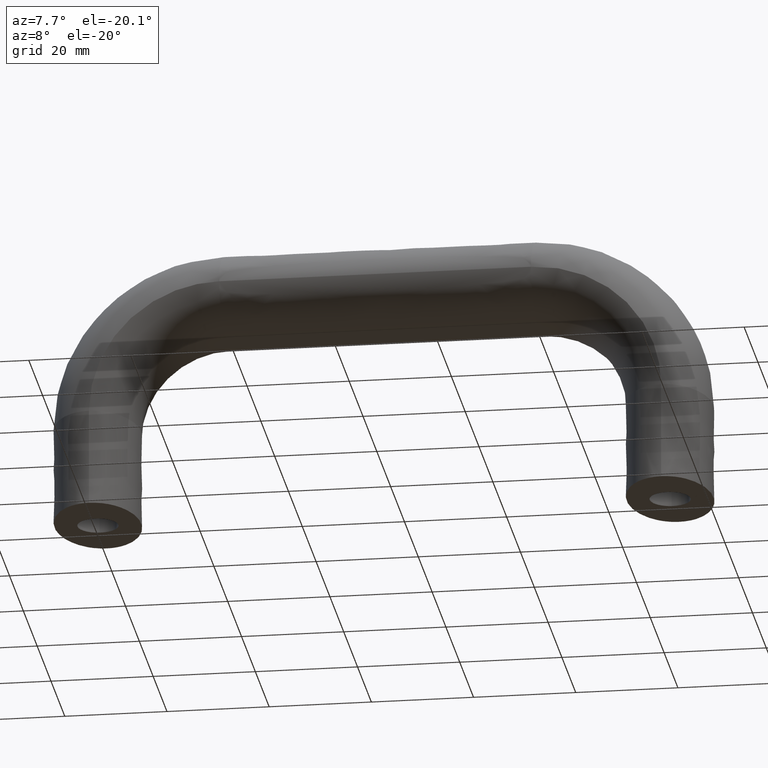
[diagram: clean part render]
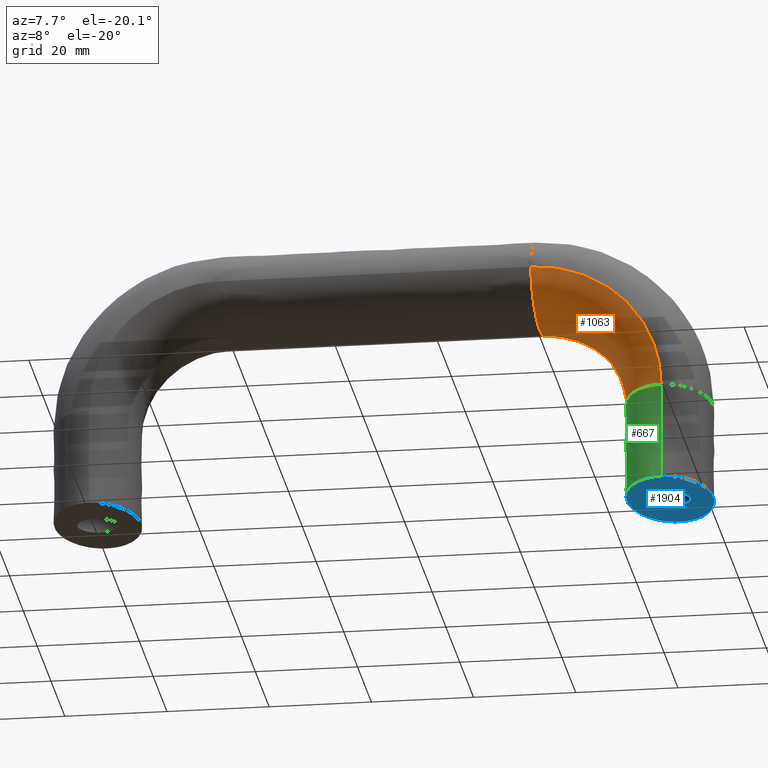
[diagram: same view with three faces highlighted in distinct colors, each labeled with its STEP entity id]
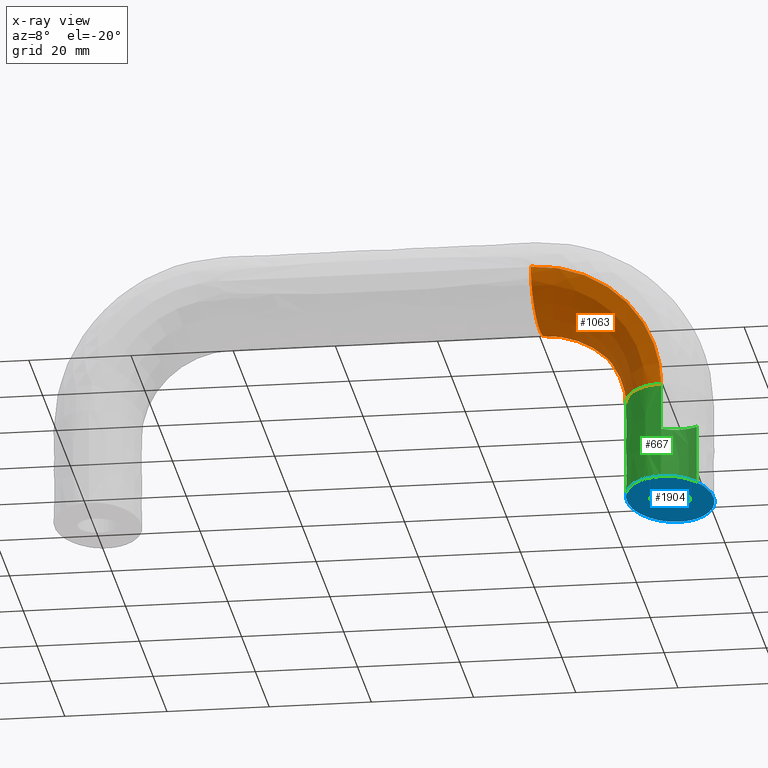
[diagram: x-ray of the same camera — body ghosted, the three highlighted faces saturated]
A machine part, auxiliary view with three faces highlighted in distinct colors.
The next image is the same camera in x-ray (body ghosted, the three faces saturated) — at least one of them is partly hidden behind the body in this view.
Their STEP definitions:

[orange] entity #1063 — the highlighted face is a freeform B-spline surface patch.
#467=CARTESIAN_POINT('',(112.0,-13.0,19.000008000000001));
#468=VERTEX_POINT('',#467);
#639=CARTESIAN_POINT('',(108.380935499016500,11.762637318019101,19.000008000000001));
#640=VERTEX_POINT('',#639);
#641=CARTESIAN_POINT('',(112.0,-13.0,19.000008000000001));
#642=CARTESIAN_POINT('',(110.887352601853610,-13.0,19.000008000000001));
#643=CARTESIAN_POINT('',(109.775142982945990,-12.661644796688099,19.000008000000001));
#644=CARTESIAN_POINT('',(107.719238666847200,-11.359223048605340,19.000008000000001));
#645=CARTESIAN_POINT('',(106.776352880213200,-10.395668951176340,19.000008000000001));
#646=CARTESIAN_POINT('',(104.416071319316600,-6.785826563922671,19.000008000000001));
#647=CARTESIAN_POINT('',(103.500000000000000,-3.403392041388941,19.000008000000001));
#648=CARTESIAN_POINT('',(103.500000000000000,3.403392041388945,19.000008000000001));
#649=CARTESIAN_POINT('',(104.416071319316600,6.785826563922680,19.000008000000001));
#650=CARTESIAN_POINT('',(106.681944169666100,10.251279158574910,19.000008000000001));
#651=CARTESIAN_POINT('',(107.495200276930800,11.124524438030560,19.000008000000001));
#652=CARTESIAN_POINT('',(108.380935499016500,11.762637318019101,19.000008000000001));
#653=B_SPLINE_CURVE_WITH_KNOTS('',3,(#641,#642,#643,#644,#645,#646,#647,#648,#649,#650,#651,#652),.UNSPECIFIED.,.F.,.U.,(4,2,2,2,2,4),(0.0,0.062500000000000,0.125000000000000,0.250000000000000,0.375000000000000,0.430000202721214),.UNSPECIFIED.);
#654=EDGE_CURVE('',#468,#640,#653,.T.);
#850=CARTESIAN_POINT('',(86.500000000000000,11.762637318019101,40.880943499016666));
#851=VERTEX_POINT('',#850);
#852=CARTESIAN_POINT('',(86.500000000000000,11.762637318019101,40.880943499016666));
#853=CARTESIAN_POINT('',(89.364675406398391,11.762637318019101,40.880916901839278));
#854=CARTESIAN_POINT('',(92.227287524936571,11.762637318019101,40.311440118332612));
#855=CARTESIAN_POINT('',(97.519652472830785,11.762637318019101,38.119269798671333));
#856=CARTESIAN_POINT('',(99.946855192562126,11.762637318019101,36.497464490749600));
#857=CARTESIAN_POINT('',(103.997456490749300,11.762637318019101,32.446863192562347));
#858=CARTESIAN_POINT('',(105.619261798682400,11.762637318019101,30.019660472813172));
#859=CARTESIAN_POINT('',(107.811432118321410,11.762637318019101,24.727295524954311));
#860=CARTESIAN_POINT('',(108.380908901974100,11.762637318019101,21.864683406385218));
#861=CARTESIAN_POINT('',(108.380935499016500,11.762637318019101,19.000008000000001));
#862=B_SPLINE_CURVE_WITH_KNOTS('',3,(#852,#853,#854,#855,#856,#857,#858,#859,#860,#861),.UNSPECIFIED.,.F.,.U.,(4,2,2,2,4),(0.670285818474701,0.726194430140404,0.782103041806107,0.838011653471810,0.893920265137512),.UNSPECIFIED.);
#863=EDGE_CURVE('',#851,#640,#862,.T.);
#887=CARTESIAN_POINT('',(86.500000000000000,-13.0,44.500008000000001));
#888=VERTEX_POINT('',#887);
#904=CARTESIAN_POINT('',(86.500000000000000,-13.0,44.500008000000001));
#905=CARTESIAN_POINT('',(89.838487934541106,-13.0,44.499975254139699));
#906=CARTESIAN_POINT('',(93.174571173048392,-13.0,43.836311204554733));
#907=CARTESIAN_POINT('',(99.342283877571163,-13.0,41.281560953520952));
#908=CARTESIAN_POINT('',(102.170941452661910,-13.0,39.391512387857723));
#909=CARTESIAN_POINT('',(106.891504387851700,-13.0,34.670949452656401));
#910=CARTESIAN_POINT('',(108.781552953532400,-13.0,31.842291877550970));
#911=CARTESIAN_POINT('',(111.336303204543000,-13.0,25.674579173068778));
#912=CARTESIAN_POINT('',(111.999967254278600,-13.0,22.338495934526119));
#913=CARTESIAN_POINT('',(112.0,-13.0,19.000008000000001));
#914=B_SPLINE_CURVE_WITH_KNOTS('',3,(#904,#905,#906,#907,#908,#909,#910,#911,#912,#913),.UNSPECIFIED.,.F.,.U.,(4,2,2,2,4),(0.670285818474701,0.726194430140404,0.782103041806107,0.838011653471810,0.893920265137512),.UNSPECIFIED.);
#915=EDGE_CURVE('',#888,#468,#914,.T.);
#922=CARTESIAN_POINT('',(86.500000000000000,-13.0,44.500008000000001));
#923=CARTESIAN_POINT('',(86.500000000000000,-13.0,43.387360601853601));
#924=CARTESIAN_POINT('',(86.500000000000000,-12.661644796688099,42.275150982946101));
#925=CARTESIAN_POINT('',(86.500000000000000,-11.359223048605340,40.219246666847347));
#926=CARTESIAN_POINT('',(86.500000000000000,-10.395668951176340,39.276360880213247));
#927=CARTESIAN_POINT('',(86.500000000000000,-6.785826563922671,36.916079319316601));
#928=CARTESIAN_POINT('',(86.500000000000000,-3.403392041388941,36.000008000000001));
#929=CARTESIAN_POINT('',(86.500000000000000,3.403392041388945,36.000008000000001));
#930=CARTESIAN_POINT('',(86.500000000000000,6.785826563922680,36.916079319316601));
#931=CARTESIAN_POINT('',(86.500000000000000,10.251275255686201,39.181949617777391));
#932=CARTESIAN_POINT('',(86.500000000000000,11.124518000766541,39.995202281890393));
#933=CARTESIAN_POINT('',(86.500000000000000,11.762630262096790,40.880933705014527));
#934=CARTESIAN_POINT('',(89.838487934541106,-13.0,44.499975254139699));
#935=CARTESIAN_POINT('',(89.692818918978091,-13.0,43.387329997841697));
#936=CARTESIAN_POINT('',(89.547207217894211,-12.661644796688099,42.275122471080941));
#937=CARTESIAN_POINT('',(89.278045973724304,-11.359223048605340,40.219221926647350));
#938=CARTESIAN_POINT('',(89.154602334074198,-10.395668951176340,39.276337824536448));
#939=CARTESIAN_POINT('',(88.845591687498199,-6.785826563922671,36.916060340258447));
#940=CARTESIAN_POINT('',(88.725658627156307,-3.403392041388941,35.999990543850551));
#941=CARTESIAN_POINT('',(88.725658627156307,3.403392041388945,35.999990543850551));
#942=CARTESIAN_POINT('',(88.845591687498199,6.785826563922680,36.916060340258447));
#943=CARTESIAN_POINT('',(89.142241908227859,10.251275255686201,39.181926725165333));
#944=CARTESIAN_POINT('',(89.248713837519603,11.124518000766541,39.995177941278421));
#945=CARTESIAN_POINT('',(89.364674765271857,11.762630262096790,40.880907748963693));
#946=CARTESIAN_POINT('',(93.174571173048392,-13.0,43.836311204554733));
#947=CARTESIAN_POINT('',(92.883338065225786,-13.0,42.752623042198749));
#948=CARTESIAN_POINT('',(92.592219545210099,-12.661644796688099,41.669361264862253));
#949=CARTESIAN_POINT('',(92.054090930186192,-11.359223048605340,39.666966639205853));
#950=CARTESIAN_POINT('',(91.807292565843895,-10.395668951176340,38.748621647665601));
#951=CARTESIAN_POINT('',(91.189493849488386,-6.785826563922671,36.449771902792691));
#952=CARTESIAN_POINT('',(90.949714115373297,-3.403392041388941,35.557543469699297));
#953=CARTESIAN_POINT('',(90.949714115373297,3.403392041388945,35.557543469699297));
#954=CARTESIAN_POINT('',(91.189493849488386,6.785826563922680,36.449771902781102));
#955=CARTESIAN_POINT('',(91.782580617167397,10.251275255686201,38.656667657881357));
#956=CARTESIAN_POINT('',(91.995447785346940,11.124518000766541,39.448753530332503));
#957=CARTESIAN_POINT('',(92.227286115701034,11.762630262096790,40.311431733566003));
#958=CARTESIAN_POINT('',(99.342283877571163,-13.0,41.281560953520952));
#959=CARTESIAN_POINT('',(98.781933534724303,-13.0,40.309344799778152));
#960=CARTESIAN_POINT('',(98.221803665793999,-12.661644796688099,39.337511171572999));
#961=CARTESIAN_POINT('',(97.186411240220210,-11.359223048605340,37.541089960338851));
#962=CARTESIAN_POINT('',(96.711556066247610,-10.395668951176340,36.717209192344953));
#963=CARTESIAN_POINT('',(95.522873484459197,-6.785826563922671,34.654827287065501));
#964=CARTESIAN_POINT('',(95.061522585039697,-3.403392041388941,33.854376635684503));
#965=CARTESIAN_POINT('',(95.061522585039697,3.403392041388945,33.854376635684503));
#966=CARTESIAN_POINT('',(95.522873484459197,6.785826563922680,34.654827287077097));
#967=CARTESIAN_POINT('',(96.664008762998336,10.251275255686201,36.634713916123147));
#968=CARTESIAN_POINT('',(97.073578236584538,11.124518000766541,37.345323025940573));
#969=CARTESIAN_POINT('',(97.519649388539960,11.762630262096790,38.119263088960032));
#970=CARTESIAN_POINT('',(102.170941452661910,-13.0,39.391512387857723));
#971=CARTESIAN_POINT('',(101.487167639574200,-13.0,38.501765160353500));
#972=CARTESIAN_POINT('',(100.803662862282590,-12.661644796688099,37.612368010384252));
#973=CARTESIAN_POINT('',(99.540213600717294,-11.359223048605340,35.968329505169848));
#974=CARTESIAN_POINT('',(98.960766229776397,-10.395668951176340,35.214335008883900));
#975=CARTESIAN_POINT('',(97.510262929675804,-6.785826563922671,33.326896114545413));
#976=CARTESIAN_POINT('',(96.947294301766902,-3.403392041388941,32.594344258564099));
#977=CARTESIAN_POINT('',(96.947294301766902,3.403392041388945,32.594344258564099));
#978=CARTESIAN_POINT('',(97.510262929675804,6.785826563922680,33.326896114545413));
#979=CARTESIAN_POINT('',(98.902746097772379,10.251275255686201,35.138837453110362));
#980=CARTESIAN_POINT('',(99.402527857992553,11.124518000766541,35.789168640114909));
#981=CARTESIAN_POINT('',(99.946851202094450,11.762630262096790,36.497458687215129));
#982=CARTESIAN_POINT('',(106.891504387851700,-13.0,34.670949452656401));
#983=CARTESIAN_POINT('',(106.001757160341800,-13.0,33.987175639562857));
#984=CARTESIAN_POINT('',(105.112360010372400,-12.661644796688099,33.303670862271296));
#985=CARTESIAN_POINT('',(103.468321505169600,-11.359223048605340,32.040221600717452));
#986=CARTESIAN_POINT('',(102.714327008883800,-10.395668951176340,31.460774229776550));
#987=CARTESIAN_POINT('',(100.826888114545200,-6.785826563922671,30.010270929675901));
#988=CARTESIAN_POINT('',(100.094336258575590,-3.403392041388941,29.447302301778649));
#989=CARTESIAN_POINT('',(100.094336258575590,3.403392041388945,29.447302301778649));
#990=CARTESIAN_POINT('',(100.826888114545200,6.785826563922680,30.010270929675951));
#991=CARTESIAN_POINT('',(102.638829453110300,10.251275255686201,31.402754097772529));
#992=CARTESIAN_POINT('',(103.289160640114700,11.124518000766541,31.902535857992699));
#993=CARTESIAN_POINT('',(103.997450687214890,11.762630262096790,32.446859202094693));
#994=CARTESIAN_POINT('',(108.781552953532400,-13.0,31.842291877550970));
#995=CARTESIAN_POINT('',(107.809336799789610,-13.0,31.281941534701200));
#996=CARTESIAN_POINT('',(106.837503171573000,-12.661644796688099,30.721811665782550));
#997=CARTESIAN_POINT('',(105.041081960338800,-11.359223048605340,29.686419240202898));
#998=CARTESIAN_POINT('',(104.217201192356400,-10.395668951176340,29.211564066236150));
#999=CARTESIAN_POINT('',(102.154819287077000,-6.785826563922671,28.022881484430300));
#1000=CARTESIAN_POINT('',(101.354368635696010,-3.403392041388941,27.561530585028201));
#1001=CARTESIAN_POINT('',(101.354368635696010,3.403392041388945,27.561530585028201));
#1002=CARTESIAN_POINT('',(102.154819287100200,6.785826563922680,28.022881484436098));
#1003=CARTESIAN_POINT('',(104.134705916124100,10.251275255686201,29.164016762964149));
#1004=CARTESIAN_POINT('',(104.845315025949600,11.124518000766541,29.573586236558871));
#1005=CARTESIAN_POINT('',(105.619255088971100,11.762630262096790,30.019657388522319));
#1006=CARTESIAN_POINT('',(111.336303204543000,-13.0,25.674579173068778));
#1007=CARTESIAN_POINT('',(110.252615042187000,-13.0,25.383346065249050));
#1008=CARTESIAN_POINT('',(109.169353264862200,-12.661644796688099,25.092227545221750));
#1009=CARTESIAN_POINT('',(107.166958639205800,-11.359223048605340,24.554098930203601));
#1010=CARTESIAN_POINT('',(106.248613647654000,-10.395668951176340,24.307300565855549));
#1011=CARTESIAN_POINT('',(103.949763902781000,-6.785826563922671,23.689501849517448));
#1012=CARTESIAN_POINT('',(103.057535469687590,-3.403392041388941,23.449722115385001));
#1013=CARTESIAN_POINT('',(103.057535469687590,3.403392041388945,23.449722115385001));
#1014=CARTESIAN_POINT('',(103.949763902757990,6.785826563922680,23.689501849511650));
#1015=CARTESIAN_POINT('',(106.156659657880400,10.251275255686201,24.282588617201800));
#1016=CARTESIAN_POINT('',(106.948745530323390,11.124518000766541,24.495455785372730));
#1017=CARTESIAN_POINT('',(107.811423733554800,11.762630262096790,24.727294115718781));
#1018=CARTESIAN_POINT('',(111.999967254278600,-13.0,22.338495934526119));
#1019=CARTESIAN_POINT('',(110.887321997977590,-13.0,22.192826918960900));
#1020=CARTESIAN_POINT('',(109.775114471213600,-12.661644796688099,22.047215217885650));
#1021=CARTESIAN_POINT('',(107.719213926773610,-11.359223048605340,21.778053973711451));
#1022=CARTESIAN_POINT('',(106.776329824639010,-10.395668951176340,21.654610334065701));
#1023=CARTESIAN_POINT('',(104.416052340392200,-6.785826563922671,21.345599687476600));
#1024=CARTESIAN_POINT('',(103.499982543971000,-3.403392041388941,21.225666627147849));
#1025=CARTESIAN_POINT('',(103.499982543971000,3.403392041388945,21.225666627147849));
#1026=CARTESIAN_POINT('',(104.416052340373000,6.785826563922680,21.345599687480949));
#1027=CARTESIAN_POINT('',(106.681918725288100,10.251275255686201,21.642249908202309));
#1028=CARTESIAN_POINT('',(107.495169941412100,11.124518000766541,21.748721837500391));
#1029=CARTESIAN_POINT('',(108.380899749098500,11.762630262096790,21.864682765258660));
#1030=CARTESIAN_POINT('',(112.0,-13.0,19.000008000000001));
#1031=CARTESIAN_POINT('',(110.887352601853610,-13.0,19.000008000000001));
#1032=CARTESIAN_POINT('',(109.775142982945990,-12.661644796688099,19.000008000000001));
#1033=CARTESIAN_POINT('',(107.719238666847200,-11.359223048605340,19.000008000000001));
#1034=CARTESIAN_POINT('',(106.776352880213200,-10.395668951176340,19.000008000000001));
#1035=CARTESIAN_POINT('',(104.416071319316600,-6.785826563922671,19.000008000000001));
#1036=CARTESIAN_POINT('',(103.500000000000000,-3.403392041388941,19.000008000000001));
#1037=CARTESIAN_POINT('',(103.500000000000000,3.403392041388945,19.000008000000001));
#1038=CARTESIAN_POINT('',(104.416071319316600,6.785826563922680,19.000008000000001));
#1039=CARTESIAN_POINT('',(106.681941617777300,10.251275255686201,19.000008000000001));
#1040=CARTESIAN_POINT('',(107.495194281890310,11.124518000766541,19.000008000000001));
#1041=CARTESIAN_POINT('',(108.380925705014410,11.762630262096790,19.000008000000001));
#1042=B_SPLINE_SURFACE_WITH_KNOTS('',3,3,((#922,#934,#946,#958,#970,#982,#994,#1006,#1018,#1030),(#923,#935,#947,#959,#971,#983,#995,#1007,#1019,#1031),(#924,#936,#948,#960,#972,#984,#996,#1008,#1020,#1032),(#925,#937,#949,#961,#973,#985,#997,#1009,#1021,#1033),(#926,#938,#950,#962,#974,#986,#998,#1010,#1022,#1034),(#927,#939,#951,#963,#975,#987,#999,#1011,#1023,#1035),(#928,#940,#952,#964,#976,#988,#1000,#1012,#1024,#1036),(#929,#941,#953,#965,#977,#989,#1001,#1013,#1025,#1037),(#930,#942,#954,#966,#978,#990,#1002,#1014,#1026,#1038),(#931,#943,#955,#967,#979,#991,#1003,#1015,#1027,#1039),(#932,#944,#956,#968,#980,#992,#1004,#1016,#1028,#1040),(#933,#945,#957,#969,#981,#993,#1005,#1017,#1029,#1041)),.UNSPECIFIED.,.F.,.F.,.U.,(4,2,2,2,2,4),(4,2,2,2,4),(0.0,5.001747763449066,10.003495526898130,20.006991053796259,30.010486580694391,34.412024612529571),(0.0,10.015463804105110,20.030927608210209,30.046391412315320,40.061855216420220),.UNSPECIFIED.);
#1043=ORIENTED_EDGE('',*,*,#654,.F.);
#1044=ORIENTED_EDGE('',*,*,#915,.F.);
#1045=CARTESIAN_POINT('',(86.500000000000000,-13.0,44.500008000000001));
#1046=CARTESIAN_POINT('',(86.500000000000000,-13.0,43.387360601853601));
#1047=CARTESIAN_POINT('',(86.500000000000000,-12.661644796688099,42.275150982946101));
#1048=CARTESIAN_POINT('',(86.500000000000000,-11.359223048605340,40.219246666847347));
#1049=CARTESIAN_POINT('',(86.500000000000000,-10.395668951176340,39.276360880213247));
#1050=CARTESIAN_POINT('',(86.500000000000000,-6.785826563922671,36.916079319316601));
#1051=CARTESIAN_POINT('',(86.500000000000000,-3.403392041388941,36.000008000000001));
#1052=CARTESIAN_POINT('',(86.500000000000000,3.403392041388945,36.000008000000001));
#1053=CARTESIAN_POINT('',(86.500000000000000,6.785826563922680,36.916079319316601));
#1054=CARTESIAN_POINT('',(86.500000000000000,10.251279158574910,39.181952169666161));
#1055=CARTESIAN_POINT('',(86.500000000000000,11.124524438030560,39.995208276930860));
#1056=CARTESIAN_POINT('',(86.500000000000000,11.762637318019101,40.880943499016666));
#1057=B_SPLINE_CURVE_WITH_KNOTS('',3,(#1045,#1046,#1047,#1048,#1049,#1050,#1051,#1052,#1053,#1054,#1055,#1056),.UNSPECIFIED.,.F.,.U.,(4,2,2,2,2,4),(0.0,0.062500000000000,0.125000000000000,0.250000000000000,0.375000000000000,0.430000202721214),.UNSPECIFIED.);
#1058=EDGE_CURVE('',#888,#851,#1057,.T.);
#1059=ORIENTED_EDGE('',*,*,#1058,.T.);
#1060=ORIENTED_EDGE('',*,*,#863,.T.);
#1061=EDGE_LOOP('',(#1043,#1044,#1059,#1060));
#1062=FACE_OUTER_BOUND('',#1061,.T.);
#1063=ADVANCED_FACE('',(#1062),#1042,.T.);

[blue] entity #1904 — the highlighted face is a freeform B-spline surface patch.
#271=CARTESIAN_POINT('',(112.472136938864100,-3.972038105426481,-3.407314E-016));
#272=VERTEX_POINT('',#271);
#278=CARTESIAN_POINT('',(108.0,0.0,0.0));
#279=VERTEX_POINT('',#278);
#280=CARTESIAN_POINT('',(112.472136938864180,-3.972038105426481,-3.407314E-016));
#281=CARTESIAN_POINT('',(112.236896478847300,-4.0,0.0));
#282=CARTESIAN_POINT('',(112.0,-4.0,0.0));
#283=CARTESIAN_POINT('',(108.0,-4.000000000000000,0.0));
#284=CARTESIAN_POINT('',(108.0,0.0,0.0));
#292=(BOUNDED_CURVE()B_SPLINE_CURVE(2,(#280,#281,#282,#283,#284),.UNSPECIFIED.,.F.,.U.)B_SPLINE_CURVE_WITH_KNOTS((3,2,3),(0.229562473495467,0.250000000000000,0.500000000000000),.UNSPECIFIED.)CURVE()GEOMETRIC_REPRESENTATION_ITEM()RATIONAL_B_SPLINE_CURVE((0.956026754148337,0.976055948310008,1.0,0.707106781186548,1.0))REPRESENTATION_ITEM(''));
#293=EDGE_CURVE('',#272,#279,#292,.T.);
#295=CARTESIAN_POINT('',(111.755805805686610,3.992539191474974,-3.330669E-016));
#296=VERTEX_POINT('',#295);
#297=CARTESIAN_POINT('',(108.0,0.0,0.0));
#298=CARTESIAN_POINT('',(108.0,3.762824199310103,0.0));
#299=CARTESIAN_POINT('',(111.755805805686680,3.992539191474974,-3.330669E-016));
#307=(BOUNDED_CURVE()B_SPLINE_CURVE(2,(#297,#298,#299),.UNSPECIFIED.,.F.,.U.)B_SPLINE_CURVE_WITH_KNOTS((3,3),(0.500000000000000,0.739332959115288),.UNSPECIFIED.)CURVE()GEOMETRIC_REPRESENTATION_ITEM()RATIONAL_B_SPLINE_CURVE((1.0,0.719603996946299,0.976072034972131))REPRESENTATION_ITEM(''));
#308=EDGE_CURVE('',#279,#296,#307,.T.);
#382=CARTESIAN_POINT('',(116.0,0.0,0.0));
#383=VERTEX_POINT('',#382);
#384=CARTESIAN_POINT('',(111.755805805686660,3.992539191474974,-3.330669E-016));
#385=CARTESIAN_POINT('',(111.877788910530260,4.0,0.0));
#386=CARTESIAN_POINT('',(112.0,4.0,0.0));
#387=CARTESIAN_POINT('',(116.0,4.000000000000000,0.0));
#388=CARTESIAN_POINT('',(116.0,0.0,0.0));
#396=(BOUNDED_CURVE()B_SPLINE_CURVE(2,(#384,#385,#386,#387,#388),.UNSPECIFIED.,.F.,.U.)B_SPLINE_CURVE_WITH_KNOTS((3,2,3),(0.739332959115287,0.750000000000000,1.0),.UNSPECIFIED.)CURVE()GEOMETRIC_REPRESENTATION_ITEM()RATIONAL_B_SPLINE_CURVE((0.976072034972129,0.987502784240247,1.0,0.707106781186548,1.0))REPRESENTATION_ITEM(''));
#397=EDGE_CURVE('',#296,#383,#396,.T.);
#399=CARTESIAN_POINT('',(116.0,0.0,0.0));
#400=CARTESIAN_POINT('',(116.000000000000010,-3.552698103378322,0.0));
#401=CARTESIAN_POINT('',(112.472136938864180,-3.972038105426481,-3.407314E-016));
#409=(BOUNDED_CURVE()B_SPLINE_CURVE(2,(#399,#400,#401),.UNSPECIFIED.,.F.,.U.)B_SPLINE_CURVE_WITH_KNOTS((3,3),(0.0,0.229562473495467),.UNSPECIFIED.)CURVE()GEOMETRIC_REPRESENTATION_ITEM()RATIONAL_B_SPLINE_CURVE((1.0,0.731050832876540,0.956026754148337))REPRESENTATION_ITEM(''));
#410=EDGE_CURVE('',#383,#272,#409,.T.);
#484=CARTESIAN_POINT('',(111.999999999999900,-13.0,6.661338E-016));
#485=VERTEX_POINT('',#484);
#493=CARTESIAN_POINT('',(115.619230261912900,11.762847667213840,-2.462210E-016));
#494=VERTEX_POINT('',#493);
#495=CARTESIAN_POINT('',(115.619230261912900,11.762847667213840,-2.462210E-016));
#496=CARTESIAN_POINT('',(116.956649166334700,10.803390672107289,-4.155011E-016));
#497=CARTESIAN_POINT('',(118.010265370545700,9.192189843254116,-5.346579E-016));
#498=CARTESIAN_POINT('',(119.205542172921500,7.364360158213149,-6.698356E-016));
#499=CARTESIAN_POINT('',(119.852858103848310,4.974720246372567,-7.198017E-016));
#500=CARTESIAN_POINT('',(120.499798650144900,2.586466109316054,-7.697388E-016));
#501=CARTESIAN_POINT('',(120.499912172600200,-0.000122424254120,-7.268080E-016));
#502=CARTESIAN_POINT('',(120.500025629222800,-2.585210970642612,-6.839021E-016));
#503=CARTESIAN_POINT('',(119.852919460393810,-4.974963469084125,-5.546102E-016));
#504=CARTESIAN_POINT('',(119.206188554526610,-7.363330127544820,-4.253933E-016));
#505=CARTESIAN_POINT('',(118.010378742658800,-9.192428436088449,-2.294238E-016));
#506=CARTESIAN_POINT('',(116.815262392124000,-11.020466033356231,-3.356799E-017));
#507=CARTESIAN_POINT('',(115.252800140997290,-12.010446515455770,1.992445E-016));
#508=CARTESIAN_POINT('',(113.691322497583400,-12.999803147335900,4.319102E-016));
#509=CARTESIAN_POINT('',(111.999999999999900,-13.0,6.661338E-016));
#510=B_SPLINE_CURVE_WITH_KNOTS('',2,(#495,#496,#497,#498,#499,#500,#501,#502,#503,#504,#505,#506,#507,#508,#509),.UNSPECIFIED.,.F.,.U.,(3,2,2,2,2,2,2,3),(0.139878520174361,0.250000000000000,0.375000000000000,0.500000000000000,0.625000000000000,0.750000000000000,0.875000000000000,1.0),.UNSPECIFIED.);
#511=EDGE_CURVE('',#494,#485,#510,.T.);
#608=CARTESIAN_POINT('',(112.0,13.0,-2.407412E-031));
#609=VERTEX_POINT('',#608);
#610=CARTESIAN_POINT('',(112.0,13.0,-2.407412E-031));
#611=CARTESIAN_POINT('',(113.690749000285290,12.999710136510631,-1.270484E-016));
#612=CARTESIAN_POINT('',(115.252670614755800,12.010240780788550,-2.238249E-016));
#613=CARTESIAN_POINT('',(115.438540826587600,11.892492952059360,-2.353414E-016));
#614=CARTESIAN_POINT('',(115.619230261912900,11.762847667213840,-2.462210E-016));
#615=B_SPLINE_CURVE_WITH_KNOTS('',2,(#610,#611,#612,#613,#614),.UNSPECIFIED.,.F.,.U.,(3,2,3),(0.0,0.125000000000000,0.139878520174361),.UNSPECIFIED.);
#616=EDGE_CURVE('',#609,#494,#615,.T.);
#618=CARTESIAN_POINT('',(112.0,-12.999999999999989,4.152786E-031));
#619=CARTESIAN_POINT('',(110.309185756169500,-12.999801080675489,2.300467E-016));
#620=CARTESIAN_POINT('',(108.747190824896710,-12.010433922646730,4.425666E-016));
#621=CARTESIAN_POINT('',(107.185552516531800,-11.021292649469290,6.550380E-016));
#622=CARTESIAN_POINT('',(105.989592359914300,-9.192388155425078,8.177565E-016));
#623=CARTESIAN_POINT('',(104.794325751855600,-7.364544260322098,9.803806E-016));
#624=CARTESIAN_POINT('',(104.147023973654100,-4.974884620746141,1.068450E-015));
#625=CARTESIAN_POINT('',(103.500097571874410,-2.586610767391027,1.156469E-015));
#626=CARTESIAN_POINT('',(103.500000000000000,1.833657E-014,1.156482E-015));
#627=CARTESIAN_POINT('',(103.499902484708500,2.585110767274284,1.156496E-015));
#628=CARTESIAN_POINT('',(104.147023973654100,4.974884620746161,1.068450E-015));
#629=CARTESIAN_POINT('',(104.793770190730600,7.363272621768422,9.804562E-016));
#630=CARTESIAN_POINT('',(105.989592359914300,9.192388155425114,8.177565E-016));
#631=CARTESIAN_POINT('',(107.184721060531700,11.020442967714080,6.551512E-016));
#632=CARTESIAN_POINT('',(108.747190824896710,12.010433922646730,4.425666E-016));
#633=CARTESIAN_POINT('',(110.308675976719900,12.999801020700520,2.301160E-016));
#634=CARTESIAN_POINT('',(112.0,13.000000000000011,1.647425E-030));
#635=B_SPLINE_CURVE_WITH_KNOTS('',2,(#618,#619,#620,#621,#622,#623,#624,#625,#626,#627,#628,#629,#630,#631,#632,#633,#634),.UNSPECIFIED.,.F.,.U.,(3,2,2,2,2,2,2,2,3),(0.0,0.125000000000000,0.250000000000000,0.375000000000000,0.500000000000000,0.625000000000000,0.750000000000000,0.875000000000000,1.0),.UNSPECIFIED.);
#636=EDGE_CURVE('',#485,#609,#635,.T.);
#1888=CARTESIAN_POINT('',(102.706397025711400,14.334696440296661,-2.407412E-031));
#1889=CARTESIAN_POINT('',(102.595633673311890,-14.262275141624791,-2.407412E-031));
#1890=CARTESIAN_POINT('',(121.403863969188090,14.262276390008960,-2.407412E-031));
#1891=CARTESIAN_POINT('',(121.293100616788610,-14.334695191912489,-2.407412E-031));
#1892=B_SPLINE_SURFACE_WITH_KNOTS('',1,1,((#1888,#1890),(#1889,#1891)),.UNSPECIFIED.,.F.,.F.,.U.,(2,2),(2,2),(0.0,28.597186088450339),(0.0,18.697607193597950),.UNSPECIFIED.);
#1893=ORIENTED_EDGE('',*,*,#616,.T.);
#1894=ORIENTED_EDGE('',*,*,#511,.T.);
#1895=ORIENTED_EDGE('',*,*,#636,.T.);
#1896=EDGE_LOOP('',(#1893,#1894,#1895));
#1897=FACE_OUTER_BOUND('',#1896,.T.);
#1898=ORIENTED_EDGE('',*,*,#308,.F.);
#1899=ORIENTED_EDGE('',*,*,#293,.F.);
#1900=ORIENTED_EDGE('',*,*,#410,.F.);
#1901=ORIENTED_EDGE('',*,*,#397,.F.);
#1902=EDGE_LOOP('',(#1898,#1899,#1900,#1901));
#1903=FACE_BOUND('',#1902,.T.);
#1904=ADVANCED_FACE('',(#1897,#1903),#1892,.F.);

[green] entity #667 — the highlighted face is a freeform B-spline surface patch.
#465=CARTESIAN_POINT('',(115.619074295161400,11.762630261970060,19.000008000000001));
#466=VERTEX_POINT('',#465);
#467=CARTESIAN_POINT('',(112.0,-13.0,19.000008000000001));
#468=VERTEX_POINT('',#467);
#484=CARTESIAN_POINT('',(111.999999999999900,-13.0,6.661338E-016));
#485=VERTEX_POINT('',#484);
#486=CARTESIAN_POINT('',(112.0,-13.0,19.000008000000001));
#487=CARTESIAN_POINT('',(112.000062061699500,-13.0,12.666672001395771));
#488=CARTESIAN_POINT('',(111.999999999999800,-13.0,6.333335998951775));
#489=CARTESIAN_POINT('',(111.999999999999800,-13.0,2.465190E-031));
#490=B_SPLINE_CURVE_WITH_KNOTS('',3,(#486,#487,#488,#489),.UNSPECIFIED.,.F.,.U.,(4,4),(0.893920265137512,1.0),.UNSPECIFIED.);
#491=EDGE_CURVE('',#468,#485,#490,.T.);
#493=CARTESIAN_POINT('',(115.619230261912900,11.762847667213840,-2.462210E-016));
#494=VERTEX_POINT('',#493);
#513=CARTESIAN_POINT('',(115.619074295161400,11.762630261970060,19.000008000000001));
#514=CARTESIAN_POINT('',(115.619192469058600,11.762702730384630,12.666672001587081));
#515=CARTESIAN_POINT('',(115.619178272995700,11.762775198799259,6.333335998808098));
#516=CARTESIAN_POINT('',(115.619230261912900,11.762847667213840,-2.462210E-016));
#517=B_SPLINE_CURVE_WITH_KNOTS('',3,(#513,#514,#515,#516),.UNSPECIFIED.,.F.,.U.,(4,4),(0.893920265137512,1.0),.UNSPECIFIED.);
#518=EDGE_CURVE('',#466,#494,#517,.T.);
#523=CARTESIAN_POINT('',(112.0,-13.0,19.000008000000001));
#524=CARTESIAN_POINT('',(110.887352601853610,-13.0,19.000008000000001));
#525=CARTESIAN_POINT('',(109.775142982945990,-12.661644796688099,19.000008000000001));
#526=CARTESIAN_POINT('',(107.719238666847200,-11.359223048605340,19.000008000000001));
#527=CARTESIAN_POINT('',(106.776352880213200,-10.395668951176340,19.000008000000001));
#528=CARTESIAN_POINT('',(104.416071319316600,-6.785826563922671,19.000008000000001));
#529=CARTESIAN_POINT('',(103.500000000000000,-3.403392041388941,19.000008000000001));
#530=CARTESIAN_POINT('',(103.500000000000000,3.403392041388945,19.000008000000001));
#531=CARTESIAN_POINT('',(104.416071319316600,6.785826563922680,19.000008000000001));
#532=CARTESIAN_POINT('',(106.776352880213200,10.395668951176340,19.000008000000001));
#533=CARTESIAN_POINT('',(107.719238666847200,11.359223048605340,19.000008000000001));
#534=CARTESIAN_POINT('',(109.775142982945990,12.661644796688099,19.000008000000001));
#535=CARTESIAN_POINT('',(110.887352601853610,13.0,19.000008000000001));
#536=CARTESIAN_POINT('',(113.112647398146390,13.0,19.000008000000001));
#537=CARTESIAN_POINT('',(114.224857017054010,12.661644796688099,19.000008000000001));
#538=CARTESIAN_POINT('',(115.376163434069200,11.932288617761770,19.000008000000001));
#539=CARTESIAN_POINT('',(115.498292737286800,11.849645570460019,19.000008000000001));
#540=CARTESIAN_POINT('',(115.619074294985500,11.762630262096810,19.000008000000001));
#541=CARTESIAN_POINT('',(112.000062061699500,-13.0,12.666672001395771));
#542=CARTESIAN_POINT('',(110.887413308281000,-13.0,12.666672001334840));
#543=CARTESIAN_POINT('',(109.775202241923000,-12.661644796688099,12.666672001271920));
#544=CARTESIAN_POINT('',(107.719295068793600,-11.359223048605340,12.666672001152220));
#545=CARTESIAN_POINT('',(106.776407886078200,-10.395668951176340,12.666672001095900));
#546=CARTESIAN_POINT('',(104.416122564341610,-6.785826563922671,12.666672000951181));
#547=CARTESIAN_POINT('',(103.500049672890200,-3.403392041388941,12.666672000893699));
#548=CARTESIAN_POINT('',(103.500049672890200,3.403392041388945,12.666672000893699));
#549=CARTESIAN_POINT('',(104.416122564393210,6.785826563922680,12.666672000951200));
#550=CARTESIAN_POINT('',(106.776407886029200,10.395668951176340,12.666672001095900));
#551=CARTESIAN_POINT('',(107.719295068793600,11.359223048605340,12.666672001152220));
#552=CARTESIAN_POINT('',(109.775202241923000,12.661644796688099,12.666672001271920));
#553=CARTESIAN_POINT('',(110.887413308281000,13.0,12.666672001334840));
#554=CARTESIAN_POINT('',(113.112710815118010,13.0,12.666672001456700));
#555=CARTESIAN_POINT('',(114.224921703825200,12.661644796688099,12.666672001515620));
#556=CARTESIAN_POINT('',(115.376229359925110,11.932288617761770,12.666672001574680));
#557=CARTESIAN_POINT('',(115.498358793804100,11.849645570460019,12.666672001580920));
#558=CARTESIAN_POINT('',(115.619140479965490,11.762630262096810,12.666672001587081));
#559=CARTESIAN_POINT('',(111.999999999999800,-13.0,6.333335998951775));
#560=CARTESIAN_POINT('',(110.887352601853390,-13.0,6.333335998997540));
#561=CARTESIAN_POINT('',(109.775142982945990,-12.661644796688099,6.333335999044800));
#562=CARTESIAN_POINT('',(107.719238666847200,-11.359223048605340,6.333335999134700));
#563=CARTESIAN_POINT('',(106.776352880213000,-10.395668951176340,6.333335999177010));
#564=CARTESIAN_POINT('',(104.416071319316400,-6.785826563922671,6.333335999285691));
#565=CARTESIAN_POINT('',(103.500000000000000,-3.403392041388941,6.333335999328860));
#566=CARTESIAN_POINT('',(103.500000000000000,3.403392041388945,6.333335999328860));
#567=CARTESIAN_POINT('',(104.416071319316400,6.785826563922680,6.333335999285691));
#568=CARTESIAN_POINT('',(106.776352880213000,10.395668951176340,6.333335999176990));
#569=CARTESIAN_POINT('',(107.719238666847200,11.359223048605340,6.333335999134700));
#570=CARTESIAN_POINT('',(109.775142982945990,12.661644796688099,6.333335999044800));
#571=CARTESIAN_POINT('',(110.887352601853390,13.0,6.333335998997540));
#572=CARTESIAN_POINT('',(113.112647398146190,13.0,6.333335998906009));
#573=CARTESIAN_POINT('',(114.224857017053790,12.661644796688099,6.333335998861760));
#574=CARTESIAN_POINT('',(115.376163434069100,11.932288617761770,6.333335998817407));
#575=CARTESIAN_POINT('',(115.498292737286700,11.849645570460019,6.333335998812719));
#576=CARTESIAN_POINT('',(115.619074294985400,11.762630262096810,6.333335998808098));
#577=CARTESIAN_POINT('',(111.999999999999800,-13.0,2.527783E-031));
#578=CARTESIAN_POINT('',(110.887352601853390,-13.0,1.513832E-016));
#579=CARTESIAN_POINT('',(109.775142982945990,-12.661644796688099,3.027068E-016));
#580=CARTESIAN_POINT('',(107.719238666847200,-11.359223048605340,5.824264E-016));
#581=CARTESIAN_POINT('',(106.776352880213000,-10.395668951176340,7.107124E-016));
#582=CARTESIAN_POINT('',(104.416071319316400,-6.785826563922671,1.031845E-015));
#583=CARTESIAN_POINT('',(103.500000000000000,-3.403392041388941,1.156482E-015));
#584=CARTESIAN_POINT('',(103.500000000000000,3.403392041388945,1.156482E-015));
#585=CARTESIAN_POINT('',(104.416071319316400,6.785826563922680,1.031845E-015));
#586=CARTESIAN_POINT('',(106.776352880213000,10.395668951176340,7.107124E-016));
#587=CARTESIAN_POINT('',(107.719238666847200,11.359223048605340,5.824264E-016));
#588=CARTESIAN_POINT('',(109.775142982945990,12.661644796688099,3.027068E-016));
#589=CARTESIAN_POINT('',(110.887352601853390,13.0,1.513832E-016));
#590=CARTESIAN_POINT('',(113.112647398146190,13.0,-1.513832E-016));
#591=CARTESIAN_POINT('',(114.224857017053790,12.661644796688099,-3.027068E-016));
#592=CARTESIAN_POINT('',(115.376163434069100,11.932288617761770,-4.593498E-016));
#593=CARTESIAN_POINT('',(115.498292737286700,11.849645570460019,-4.759663E-016));
#594=CARTESIAN_POINT('',(115.619074294985400,11.762630262096810,-4.923995E-016));
#595=B_SPLINE_SURFACE_WITH_KNOTS('',3,3,((#523,#541,#559,#577),(#524,#542,#560,#578),(#525,#543,#561,#579),(#526,#544,#562,#580),(#527,#545,#563,#581),(#528,#546,#564,#582),(#529,#547,#565,#583),(#530,#548,#566,#584),(#531,#549,#567,#585),(#532,#550,#568,#586),(#533,#551,#569,#587),(#534,#552,#570,#588),(#535,#553,#571,#589),(#536,#554,#572,#590),(#537,#555,#573,#591),(#538,#556,#574,#592),(#539,#557,#575,#593),(#540,#558,#576,#594)),.UNSPECIFIED.,.F.,.F.,.U.,(4,2,2,2,2,2,2,2,4),(4,4),(0.0,5.001747877165514,10.003495754331031,20.006991508662061,30.010487262993092,35.012235140158602,40.013983017324122,45.015730894489629,45.615940639749489),(0.0,19.000008001702351),.UNSPECIFIED.);
#596=CARTESIAN_POINT('',(112.0,13.0,19.000008000000001));
#597=VERTEX_POINT('',#596);
#598=CARTESIAN_POINT('',(112.0,13.0,19.000008000000001));
#599=CARTESIAN_POINT('',(113.112647398146390,13.0,19.000008000000001));
#600=CARTESIAN_POINT('',(114.224857017054010,12.661644796688099,19.000008000000001));
#601=CARTESIAN_POINT('',(115.376163434189000,11.932288617685890,19.000008000000001));
#602=CARTESIAN_POINT('',(115.498292737523900,11.849645570299540,19.000008000000001));
#603=CARTESIAN_POINT('',(115.619074295161400,11.762630261970060,19.000008000000001));
#604=B_SPLINE_CURVE_WITH_KNOTS('',3,(#598,#599,#600,#601,#602,#603),.UNSPECIFIED.,.F.,.U.,(4,2,4),(0.500000000000000,0.562500000000000,0.570000000007282),.UNSPECIFIED.);
#605=EDGE_CURVE('',#597,#466,#604,.T.);
#606=ORIENTED_EDGE('',*,*,#605,.T.);
#607=ORIENTED_EDGE('',*,*,#518,.T.);
#608=CARTESIAN_POINT('',(112.0,13.0,-2.407412E-031));
#609=VERTEX_POINT('',#608);
#610=CARTESIAN_POINT('',(112.0,13.0,-2.407412E-031));
#611=CARTESIAN_POINT('',(113.690749000285290,12.999710136510631,-1.270484E-016));
#612=CARTESIAN_POINT('',(115.252670614755800,12.010240780788550,-2.238249E-016));
#613=CARTESIAN_POINT('',(115.438540826587600,11.892492952059360,-2.353414E-016));
#614=CARTESIAN_POINT('',(115.619230261912900,11.762847667213840,-2.462210E-016));
#615=B_SPLINE_CURVE_WITH_KNOTS('',2,(#610,#611,#612,#613,#614),.UNSPECIFIED.,.F.,.U.,(3,2,3),(0.0,0.125000000000000,0.139878520174361),.UNSPECIFIED.);
#616=EDGE_CURVE('',#609,#494,#615,.T.);
#617=ORIENTED_EDGE('',*,*,#616,.F.);
#618=CARTESIAN_POINT('',(112.0,-12.999999999999989,4.152786E-031));
#619=CARTESIAN_POINT('',(110.309185756169500,-12.999801080675489,2.300467E-016));
#620=CARTESIAN_POINT('',(108.747190824896710,-12.010433922646730,4.425666E-016));
#621=CARTESIAN_POINT('',(107.185552516531800,-11.021292649469290,6.550380E-016));
#622=CARTESIAN_POINT('',(105.989592359914300,-9.192388155425078,8.177565E-016));
#623=CARTESIAN_POINT('',(104.794325751855600,-7.364544260322098,9.803806E-016));
#624=CARTESIAN_POINT('',(104.147023973654100,-4.974884620746141,1.068450E-015));
#625=CARTESIAN_POINT('',(103.500097571874410,-2.586610767391027,1.156469E-015));
#626=CARTESIAN_POINT('',(103.500000000000000,1.833657E-014,1.156482E-015));
#627=CARTESIAN_POINT('',(103.499902484708500,2.585110767274284,1.156496E-015));
#628=CARTESIAN_POINT('',(104.147023973654100,4.974884620746161,1.068450E-015));
#629=CARTESIAN_POINT('',(104.793770190730600,7.363272621768422,9.804562E-016));
#630=CARTESIAN_POINT('',(105.989592359914300,9.192388155425114,8.177565E-016));
#631=CARTESIAN_POINT('',(107.184721060531700,11.020442967714080,6.551512E-016));
#632=CARTESIAN_POINT('',(108.747190824896710,12.010433922646730,4.425666E-016));
#633=CARTESIAN_POINT('',(110.308675976719900,12.999801020700520,2.301160E-016));
#634=CARTESIAN_POINT('',(112.0,13.000000000000011,1.647425E-030));
#635=B_SPLINE_CURVE_WITH_KNOTS('',2,(#618,#619,#620,#621,#622,#623,#624,#625,#626,#627,#628,#629,#630,#631,#632,#633,#634),.UNSPECIFIED.,.F.,.U.,(3,2,2,2,2,2,2,2,3),(0.0,0.125000000000000,0.250000000000000,0.375000000000000,0.500000000000000,0.625000000000000,0.750000000000000,0.875000000000000,1.0),.UNSPECIFIED.);
#636=EDGE_CURVE('',#485,#609,#635,.T.);
#637=ORIENTED_EDGE('',*,*,#636,.F.);
#638=ORIENTED_EDGE('',*,*,#491,.F.);
#639=CARTESIAN_POINT('',(108.380935499016500,11.762637318019101,19.000008000000001));
#640=VERTEX_POINT('',#639);
#641=CARTESIAN_POINT('',(112.0,-13.0,19.000008000000001));
#642=CARTESIAN_POINT('',(110.887352601853610,-13.0,19.000008000000001));
#643=CARTESIAN_POINT('',(109.775142982945990,-12.661644796688099,19.000008000000001));
#644=CARTESIAN_POINT('',(107.719238666847200,-11.359223048605340,19.000008000000001));
#645=CARTESIAN_POINT('',(106.776352880213200,-10.395668951176340,19.000008000000001));
#646=CARTESIAN_POINT('',(104.416071319316600,-6.785826563922671,19.000008000000001));
#647=CARTESIAN_POINT('',(103.500000000000000,-3.403392041388941,19.000008000000001));
#648=CARTESIAN_POINT('',(103.500000000000000,3.403392041388945,19.000008000000001));
#649=CARTESIAN_POINT('',(104.416071319316600,6.785826563922680,19.000008000000001));
#650=CARTESIAN_POINT('',(106.681944169666100,10.251279158574910,19.000008000000001));
#651=CARTESIAN_POINT('',(107.495200276930800,11.124524438030560,19.000008000000001));
#652=CARTESIAN_POINT('',(108.380935499016500,11.762637318019101,19.000008000000001));
#653=B_SPLINE_CURVE_WITH_KNOTS('',3,(#641,#642,#643,#644,#645,#646,#647,#648,#649,#650,#651,#652),.UNSPECIFIED.,.F.,.U.,(4,2,2,2,2,4),(0.0,0.062500000000000,0.125000000000000,0.250000000000000,0.375000000000000,0.430000202721214),.UNSPECIFIED.);
#654=EDGE_CURVE('',#468,#640,#653,.T.);
#655=ORIENTED_EDGE('',*,*,#654,.T.);
#656=CARTESIAN_POINT('',(108.380935499016500,11.762637318019101,19.000008000000001));
#657=CARTESIAN_POINT('',(108.501713864900910,11.849650038056430,19.000008000000001));
#658=CARTESIAN_POINT('',(108.623839900134000,11.932290729989900,19.000008000000001));
#659=CARTESIAN_POINT('',(109.775142982945990,12.661644796688099,19.000008000000001));
#660=CARTESIAN_POINT('',(110.887352601853610,13.0,19.000008000000001));
#661=CARTESIAN_POINT('',(112.0,13.0,19.000008000000001));
#662=B_SPLINE_CURVE_WITH_KNOTS('',3,(#656,#657,#658,#659,#660,#661),.UNSPECIFIED.,.F.,.U.,(4,2,4),(0.430000202721214,0.437500000000000,0.500000000000000),.UNSPECIFIED.);
#663=EDGE_CURVE('',#640,#597,#662,.T.);
#664=ORIENTED_EDGE('',*,*,#663,.T.);
#665=EDGE_LOOP('',(#606,#607,#617,#637,#638,#655,#664));
#666=FACE_OUTER_BOUND('',#665,.T.);
#667=ADVANCED_FACE('',(#666),#595,.T.);